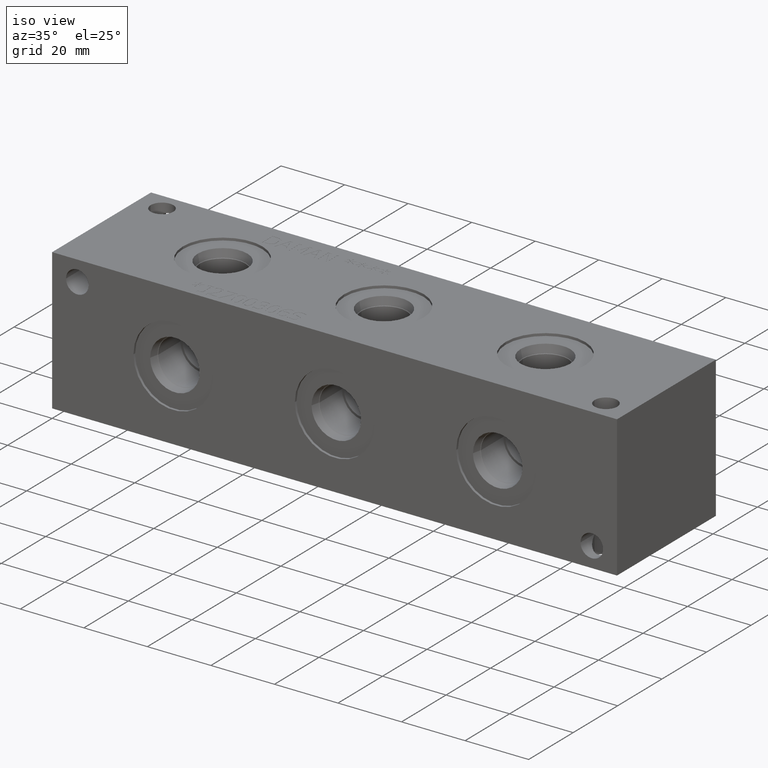
[diagram: clean part render]
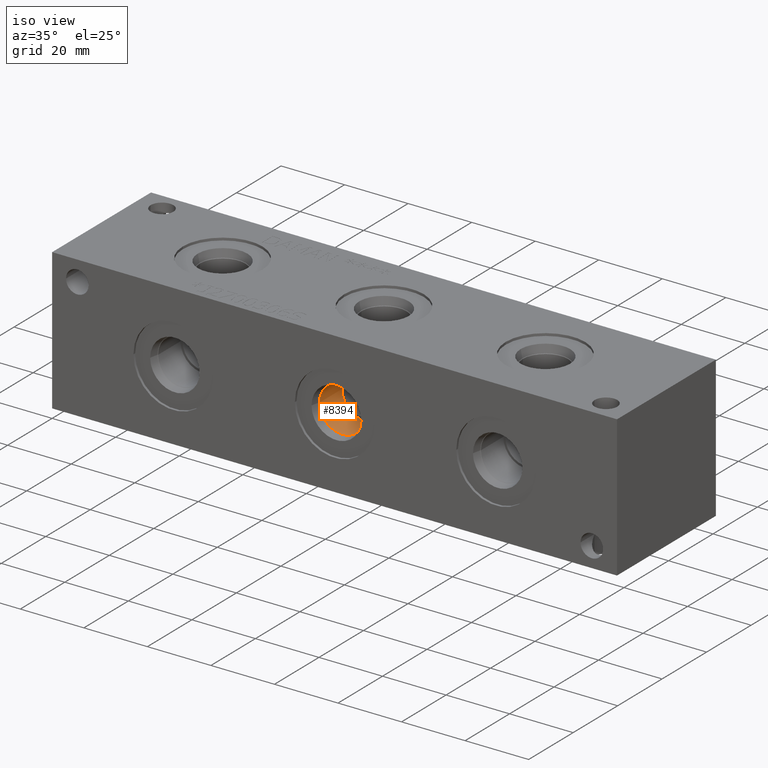
[diagram: same view with one face highlighted and labeled with its STEP entity id]
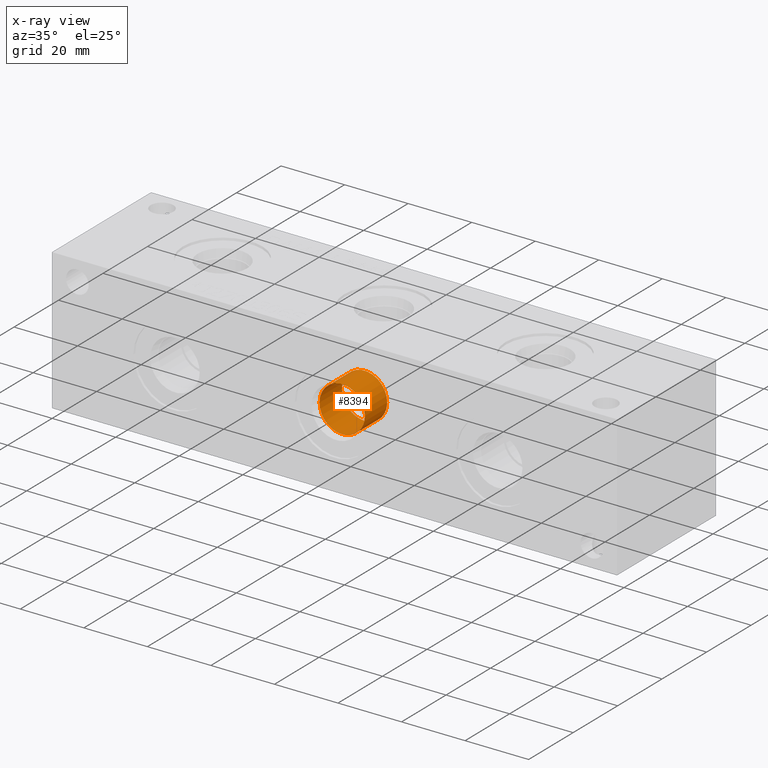
[diagram: x-ray of the same camera — body ghosted, the highlighted face saturated]
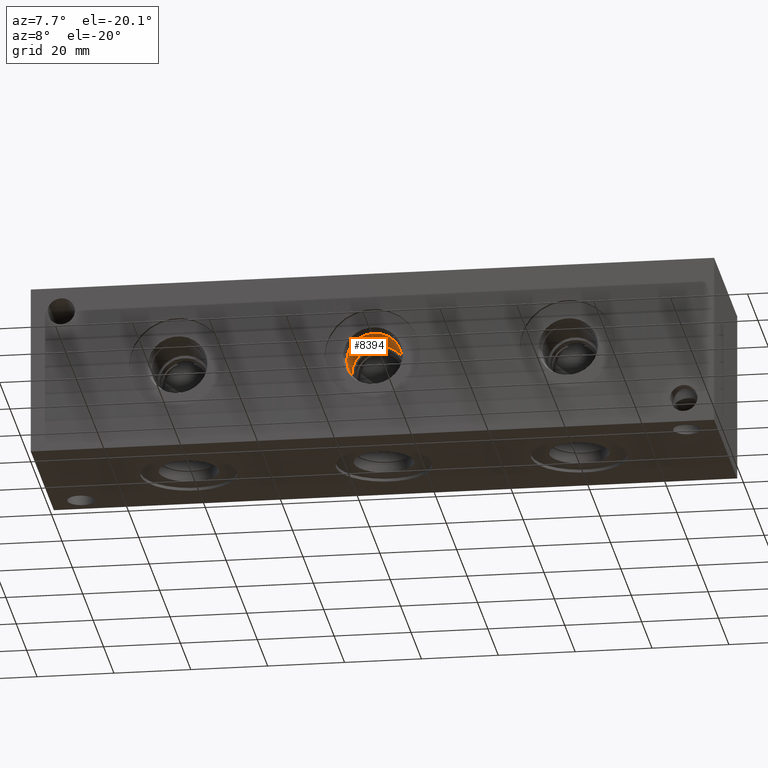
[diagram: same view with one face highlighted and labeled with its STEP entity id]
A machine part, iso view. The second image highlights one B-rep face of the part: STEP entity #8394.
The next image is the same camera in x-ray: the body ghosted, the highlighted face saturated — about 0% of this face is hidden behind the body in this view.
A second angle (auxiliary view) of the same face is appended — the face is thin or edge-on in the first view.
In plain terms, the highlighted cylindrical surface (bore or boss wall) has radius 7.1374 mm, axis along (0, -1, 0).
Its self-contained STEP definition (entity closure, byte-faithful):
#124=CYLINDRICAL_SURFACE('',#8909,7.1374);
#260=CIRCLE('',#8847,7.1374);
#288=CIRCLE('',#8907,7.1374);
#289=CIRCLE('',#8908,7.1374);
#1017=FACE_OUTER_BOUND('',#1498,.T.);
#1498=EDGE_LOOP('',(#7398,#7399,#7400,#7401,#7402));
#2233=LINE('',#14649,#2946);
#2946=VECTOR('',#10608,7.1374);
#3949=VERTEX_POINT('',#14541);
#3977=VERTEX_POINT('',#14644);
#3978=VERTEX_POINT('',#14645);
#5087=EDGE_CURVE('',#3949,#3949,#260,.T.);
#5137=EDGE_CURVE('',#3977,#3978,#288,.T.);
#5138=EDGE_CURVE('',#3978,#3977,#289,.T.);
#5139=EDGE_CURVE('',#3949,#3978,#2233,.T.);
#7398=ORIENTED_EDGE('',*,*,#5087,.T.);
#7399=ORIENTED_EDGE('',*,*,#5139,.T.);
#7400=ORIENTED_EDGE('',*,*,#5137,.F.);
#7401=ORIENTED_EDGE('',*,*,#5138,.F.);
#7402=ORIENTED_EDGE('',*,*,#5139,.F.);
#8394=ADVANCED_FACE('',(#1017),#124,.F.);
#8847=AXIS2_PLACEMENT_3D('',#14543,#10468,#10469);
#8907=AXIS2_PLACEMENT_3D('',#14646,#10602,#10603);
#8908=AXIS2_PLACEMENT_3D('',#14647,#10604,#10605);
#8909=AXIS2_PLACEMENT_3D('',#14648,#10606,#10607);
#10468=DIRECTION('center_axis',(0.,-1.,0.));
#10469=DIRECTION('ref_axis',(1.,0.,0.));
#10602=DIRECTION('center_axis',(0.,-1.,0.));
#10603=DIRECTION('ref_axis',(1.,0.,0.));
#10604=DIRECTION('center_axis',(0.,-1.,0.));
#10605=DIRECTION('ref_axis',(1.,0.,0.));
#10606=DIRECTION('center_axis',(0.,-1.,0.));
#10607=DIRECTION('ref_axis',(1.,0.,0.));
#10608=DIRECTION('',(0.,1.,0.));
#14541=CARTESIAN_POINT('',(81.7626,3.429,22.225));
#14543=CARTESIAN_POINT('Origin',(88.9,3.429,22.225));
#14644=CARTESIAN_POINT('',(96.0374,13.4874,22.225));
#14645=CARTESIAN_POINT('',(81.7626,13.4874,22.225));
#14646=CARTESIAN_POINT('Origin',(88.9,13.4874,22.225));
#14647=CARTESIAN_POINT('Origin',(88.9,13.4874,22.225));
#14648=CARTESIAN_POINT('Origin',(88.9,6.7437,22.225));
#14649=CARTESIAN_POINT('',(81.7626,6.7437,22.225));